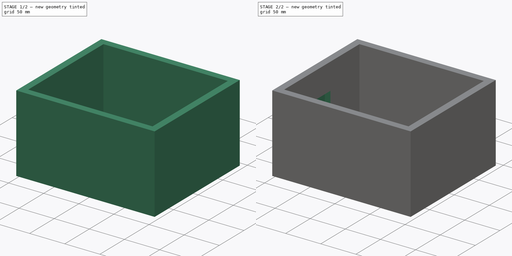
[diagram: build sequence overview — one tinted view per stage of 2, left to right]
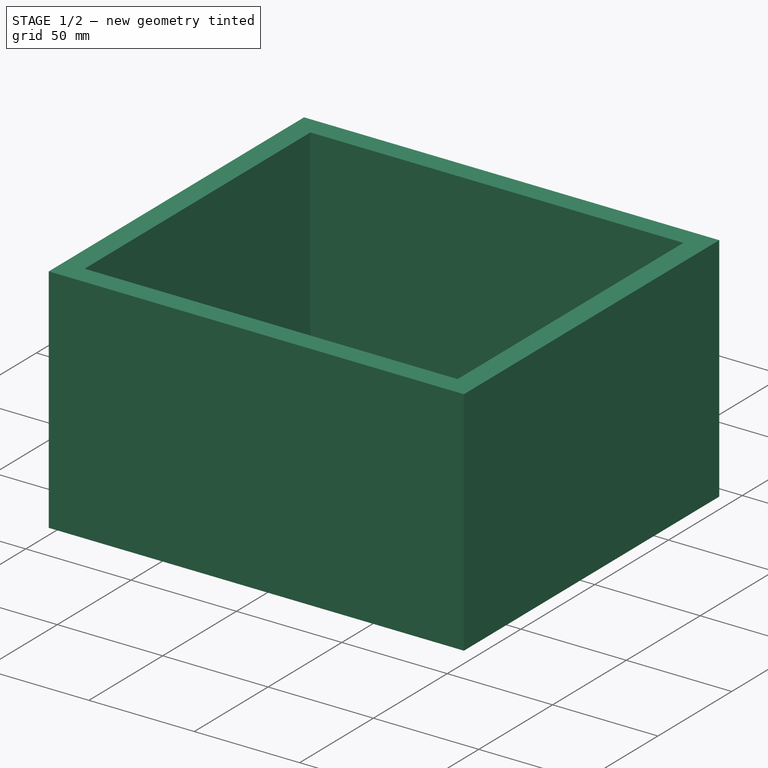
[diagram: stage 1 of 2 — iso view after this stage's code; geometry added in this stage tinted green]
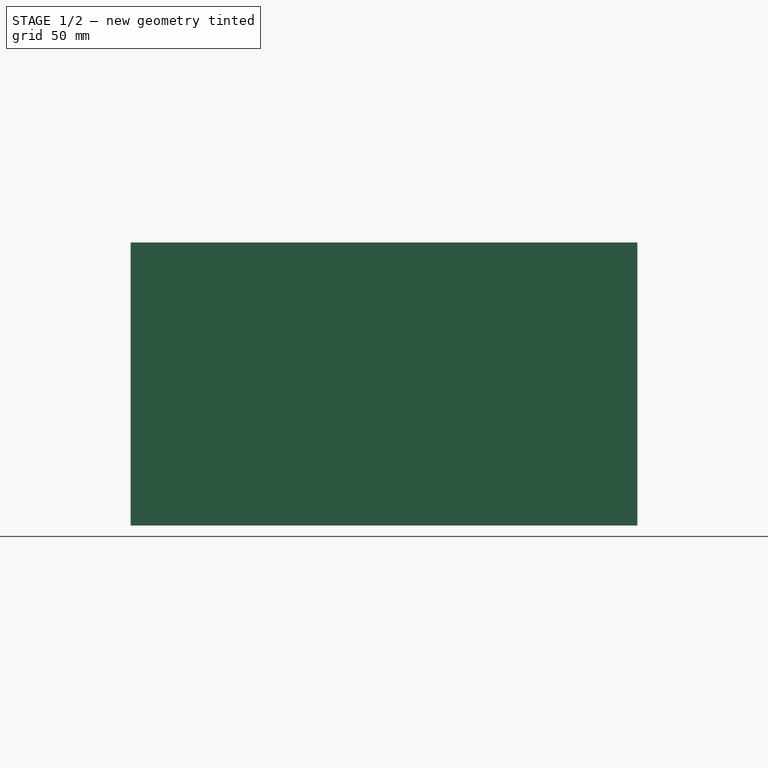
[diagram: stage 1 of 2 — front view after this stage's code; geometry added in this stage tinted green]
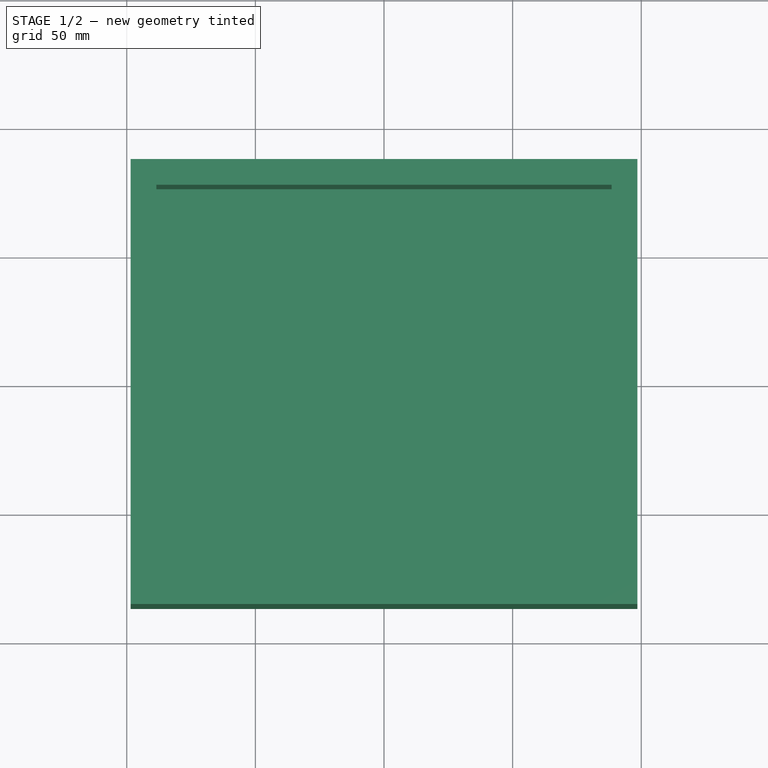
[diagram: stage 1 of 2 — top view after this stage's code; geometry added in this stage tinted green]
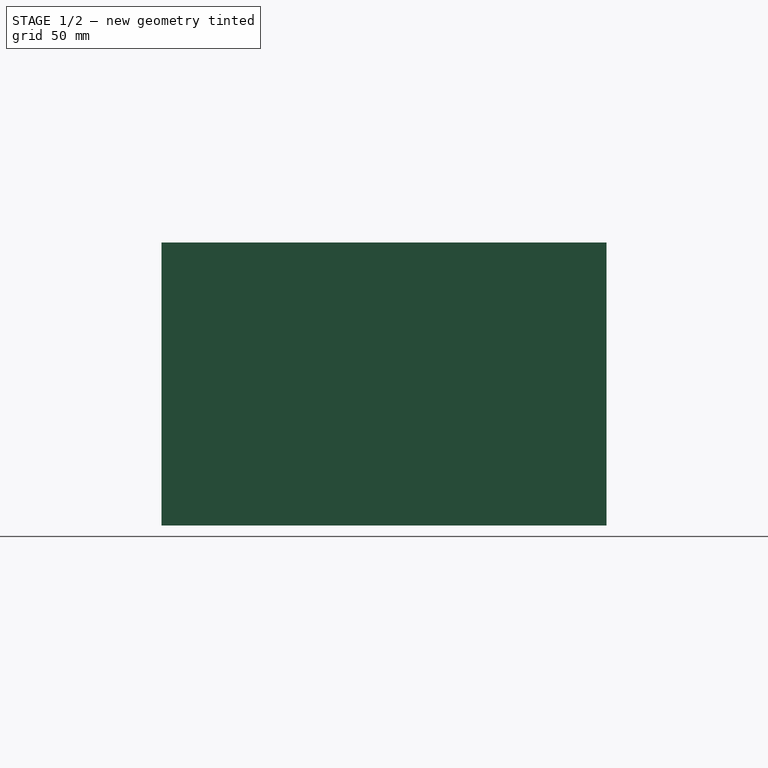
[diagram: stage 1 of 2 — right view after this stage's code; geometry added in this stage tinted green]
FCSTD DOCUMENT  (FreeCAD 0.21R33771 (Git))
Label: 3d skica
License: All rights reserved
LicenseURL: https://en.wikipedia.org/wiki/All_rights_reserved
objects: Sketcher::SketchObject×4, PartDesign::Pocket×3, PartDesign::Pad×1, PartDesign::Body×1
note: 13 computed .brp shape members not serialized (recipe doc carries the construction recipe); baked Part::Feature solids carry a one-line shape summary decoded from their .brp

FEATURE [Sketcher::SketchObject] Sketch001
  FullyConstrained = true
  MapMode = 5
  Support = -> [XY_Plane]
  sketch-geometry (4):
    g0: LineSegment StartX=-98.5 StartY=86.5 StartZ=0 EndX=98.5 EndY=86.5 EndZ=0
    g1: LineSegment StartX=98.5 StartY=86.5 StartZ=0 EndX=98.5 EndY=-86.5 EndZ=0
    g2: LineSegment StartX=98.5 StartY=-86.5 StartZ=0 EndX=-98.5 EndY=-86.5 EndZ=0
    g3: LineSegment StartX=-98.5 StartY=-86.5 StartZ=0 EndX=-98.5 EndY=86.5 EndZ=0
  constraints (12):
    c: Coincident(g0,g1)
    c: Coincident(g1,g2)
    c: Coincident(g2,g3)
    c: Coincident(g3,g0)
    c: Horizontal(g0)
    c: Horizontal(g2)
    c: Vertical(g1)
    c: Vertical(g3)
    c: DistanceY(g1,g1) = 173
    c: DistanceX(g0,g0) = 197
    c: DistanceX(g-1,g1) = 98.5
    c: DistanceY(g-1,g0) = 86.5
FEATURE [PartDesign::Pad] Pad
  Direction = (0,0,1)
  Length = 110
  Length2 = 10
  Profile = -> Sketch001
  ReferenceAxis = -> Sketch001 [N_Axis]
  Type = 0
FEATURE [Sketcher::SketchObject] Sketch
  FullyConstrained = true
  MapMode = 5
  Placement = pos=(0,0,110) rot=(0,0,1;0rad)
  Support = -> [Pad]
  sketch-geometry (4):
    g0: LineSegment StartX=-88.5 StartY=76.5 StartZ=0 EndX=88.5 EndY=76.5 EndZ=0
    g1: LineSegment StartX=88.5 StartY=76.5 StartZ=0 EndX=88.5 EndY=-76.5 EndZ=0
    g2: LineSegment StartX=88.5 StartY=-76.5 StartZ=0 EndX=-88.5 EndY=-76.5 EndZ=0
    g3: LineSegment StartX=-88.5 StartY=-76.5 StartZ=0 EndX=-88.5 EndY=76.5 EndZ=0
  constraints (12):
    c: Coincident(g0,g1)
    c: Coincident(g1,g2)
    c: Coincident(g2,g3)
    c: Coincident(g3,g0)
    c: Horizontal(g0)
    c: Horizontal(g2)
    c: Vertical(g1)
    c: Vertical(g3)
    c: DistanceX(g0,g0) = 177
    c: DistanceY(g3,g3) = 153
    c: DistanceX(g2,g-1) = 88.5
    c: DistanceY(g2,g-1) = 76.5
FEATURE [PartDesign::Pocket] Pocket
  BaseFeature = -> Pad
  Direction = (0,0,-1)
  Length = 100
  Length2 = 5
  Profile = -> Sketch
  ReferenceAxis = -> Sketch [N_Axis]
  Type = 0
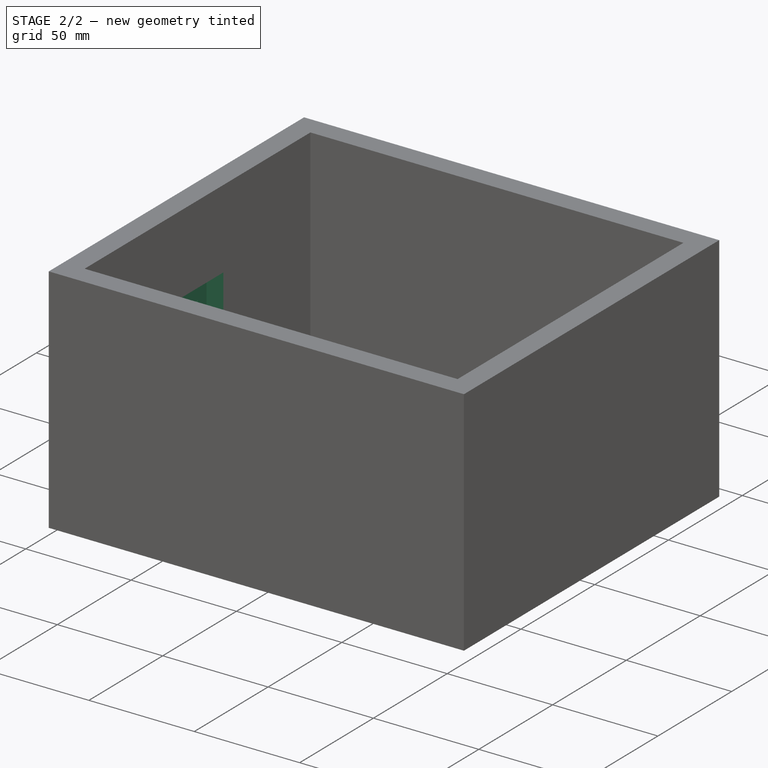
[diagram: stage 2 of 2 — iso view after this stage's code; geometry added in this stage tinted green]
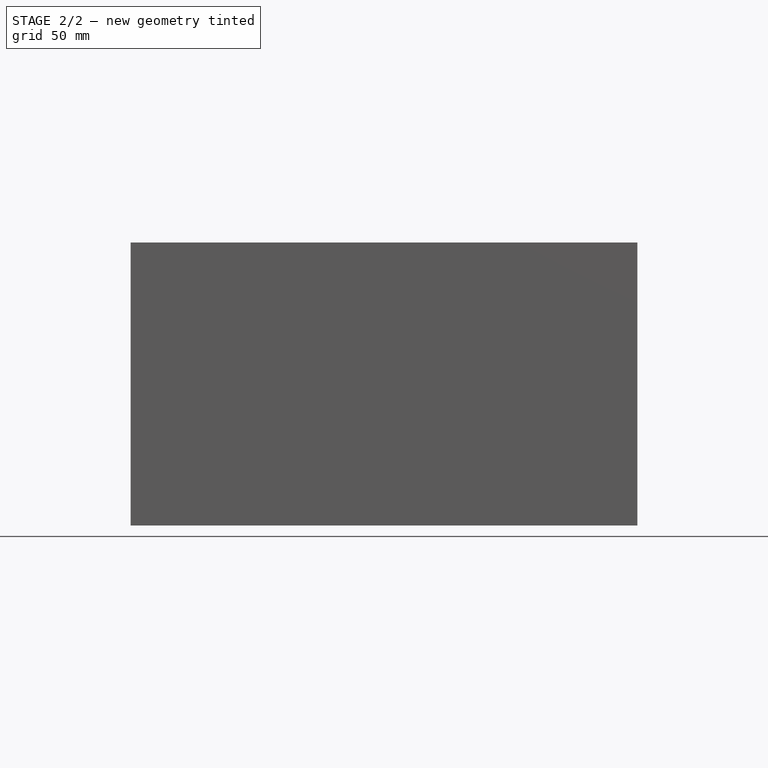
[diagram: stage 2 of 2 — front view after this stage's code; geometry added in this stage tinted green]
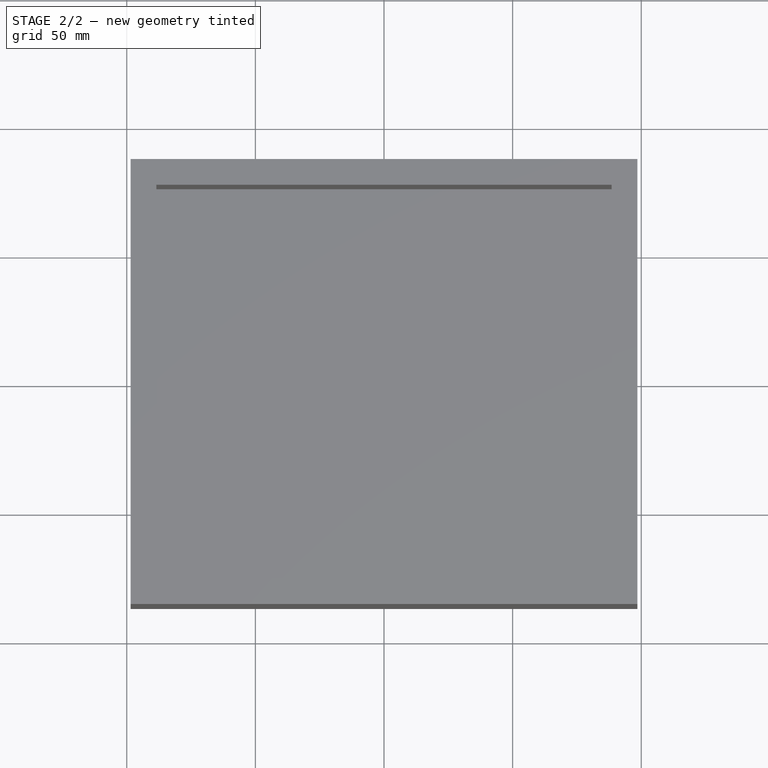
[diagram: stage 2 of 2 — top view after this stage's code; geometry added in this stage tinted green]
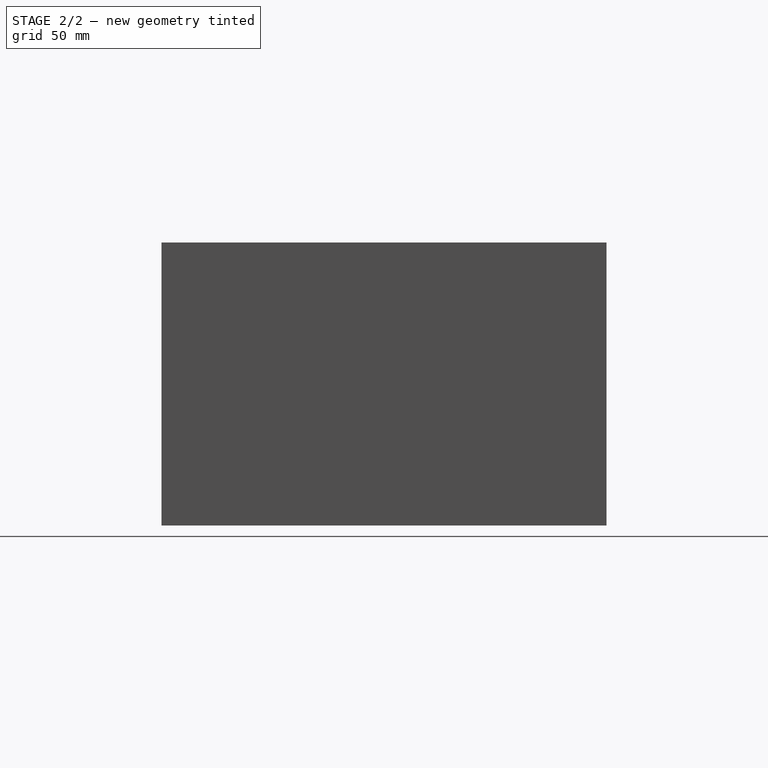
[diagram: stage 2 of 2 — right view after this stage's code; geometry added in this stage tinted green]
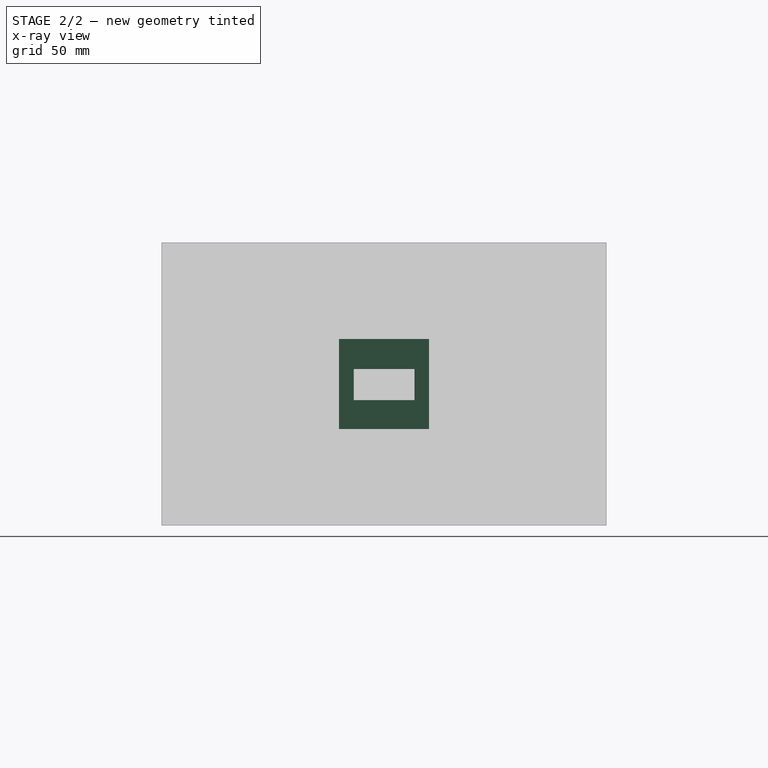
[diagram: stage 2 of 2 — x-ray composite at the right view; earlier geometry ghosted, this stage's added geometry solid]
FEATURE [Sketcher::SketchObject] Sketch002
  FullyConstrained = true
  MapMode = 5
  Placement = pos=(-98.5,0,0) rot=(0.57735,-0.57735,-0.57735;2.0944rad)
  Support = -> [Pocket]
  sketch-geometry (4):
    g0: LineSegment StartX=-11.75 StartY=60.75 StartZ=0 EndX=11.75 EndY=60.75 EndZ=0
    g1: LineSegment StartX=11.75 StartY=60.75 StartZ=0 EndX=11.75 EndY=48.75 EndZ=0
    g2: LineSegment StartX=11.75 StartY=48.75 StartZ=0 EndX=-11.75 EndY=48.75 EndZ=0
    g3: LineSegment StartX=-11.75 StartY=48.75 StartZ=0 EndX=-11.75 EndY=60.75 EndZ=0
  constraints (12):
    c: Coincident(g0,g1)
    c: Coincident(g1,g2)
    c: Coincident(g2,g3)
    c: Coincident(g3,g0)
    c: Horizontal(g0)
    c: Horizontal(g2)
    c: Vertical(g1)
    c: Vertical(g3)
    c: DistanceX(g0,g0) = 23.5
    c: DistanceY(g3,g3) = 12
    c: DistanceX(g2,g-1) = 11.75
    c: DistanceY(g-1,g2) = 48.75
FEATURE [PartDesign::Pocket] Pocket001
  BaseFeature = -> Pocket
  Direction = (1,0,0)
  Length = 20
  Length2 = 5
  Profile = -> Sketch002
  ReferenceAxis = -> Sketch002 [N_Axis]
  Type = 0
FEATURE [Sketcher::SketchObject] Sketch003
  FullyConstrained = true
  MapMode = 5
  Placement = pos=(-88.5,0,0) rot=(0.57735,0.57735,0.57735;2.0944rad)
  Support = -> [Pocket001]
  sketch-geometry (4):
    g0: LineSegment StartX=-17.5 StartY=72.5 StartZ=0 EndX=17.5 EndY=72.5 EndZ=0
    g1: LineSegment StartX=17.5 StartY=72.5 StartZ=0 EndX=17.5 EndY=37.5 EndZ=0
    g2: LineSegment StartX=17.5 StartY=37.5 StartZ=0 EndX=-17.5 EndY=37.5 EndZ=0
    g3: LineSegment StartX=-17.5 StartY=37.5 StartZ=0 EndX=-17.5 EndY=72.5 EndZ=0
  constraints (12):
    c: Coincident(g0,g1)
    c: Coincident(g1,g2)
    c: Coincident(g2,g3)
    c: Coincident(g3,g0)
    c: Horizontal(g0)
    c: Horizontal(g2)
    c: Vertical(g1)
    c: Vertical(g3)
    c: DistanceX(g0,g0) = 35
    c: DistanceY(g3,g3) = 35
    c: DistanceY(g-1,g1) = 37.5
    c: DistanceX(g-1,g1) = 17.5
FEATURE [PartDesign::Pocket] Pocket002
  BaseFeature = -> Pocket001
  Direction = (-1,0,0)
  Length = 8
  Length2 = 5
  Profile = -> Sketch003
  ReferenceAxis = -> Sketch003 [N_Axis]
  Type = 0
FEATURE [PartDesign::Body] Body
  Group = -> [Sketch001,Pad,Sketch,Pocket,Sketch002,Pocket001,Sketch003,Pocket002]
  Origin = -> Origin
  Tip = -> Pocket002
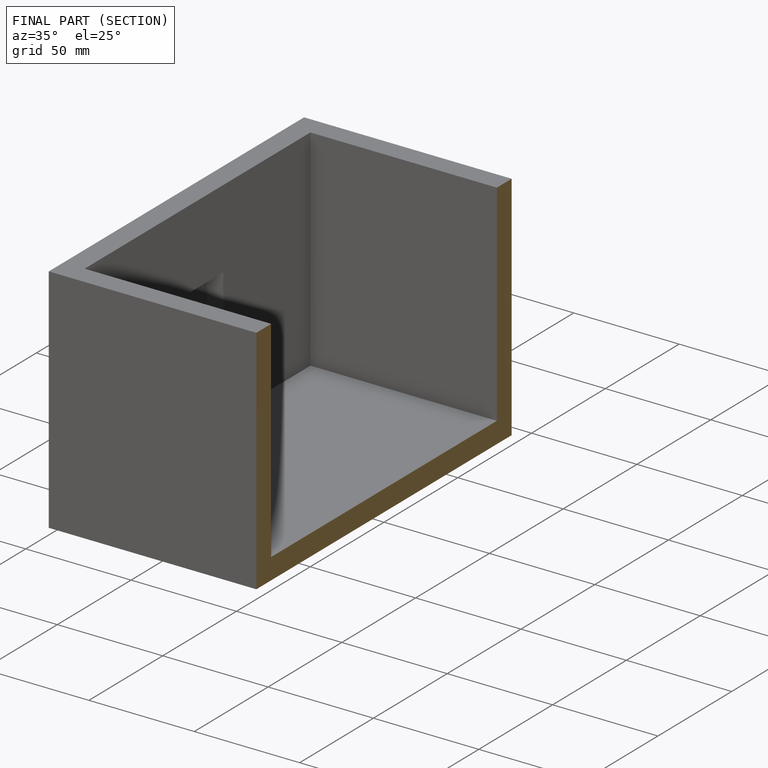
[diagram: finished part — half-section view (interior)]
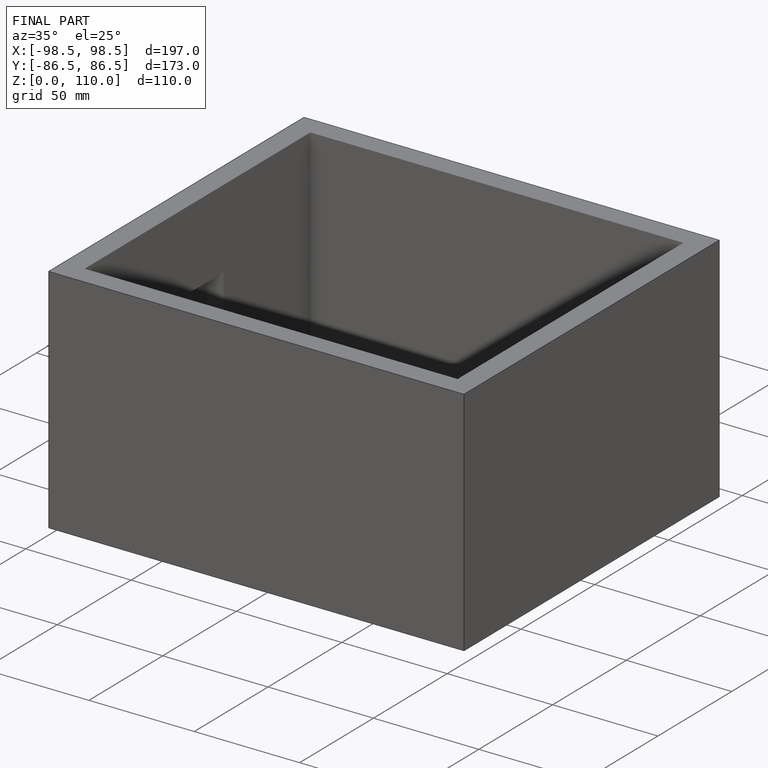
[diagram: finished part — iso view with bounding-box wireframe]
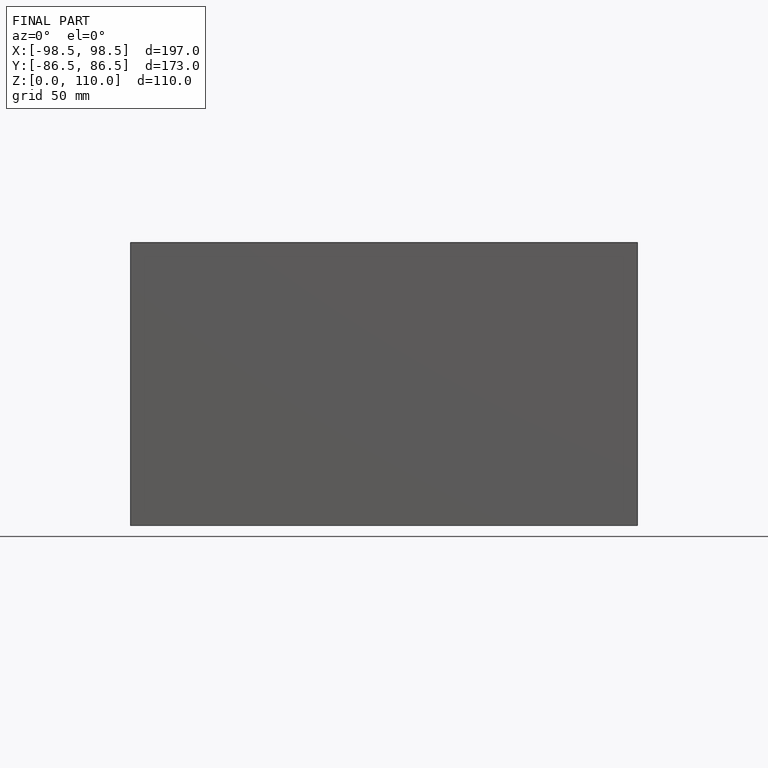
[diagram: finished part — front view with bounding-box wireframe]
